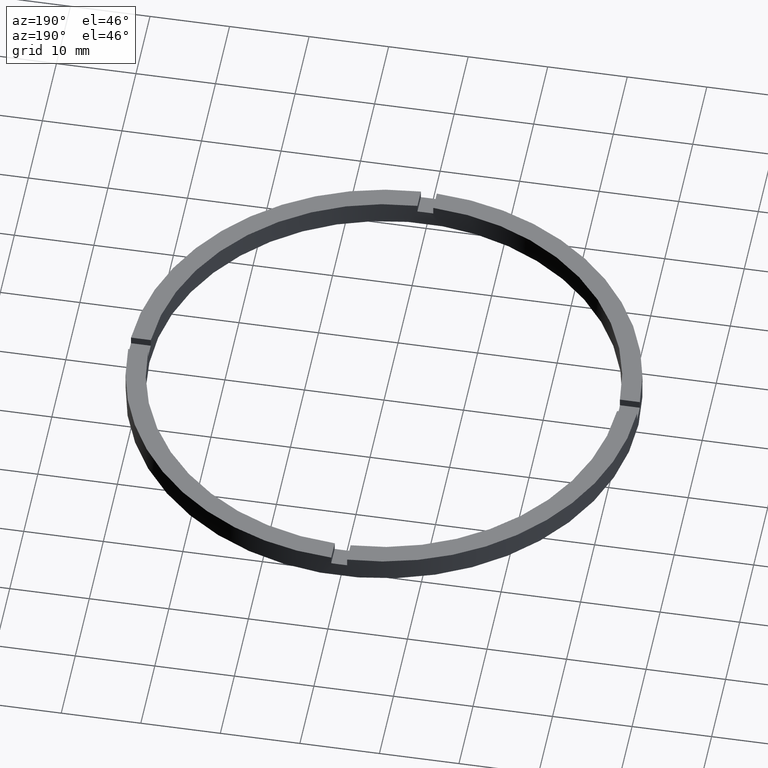
[diagram: clean part render]
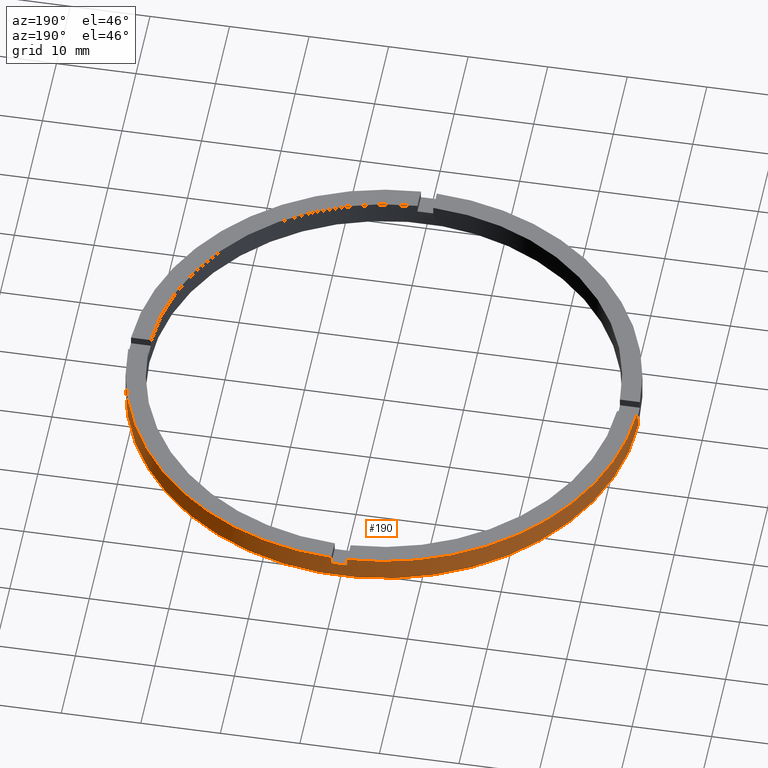
[diagram: same view with one face highlighted and labeled with its STEP entity id]
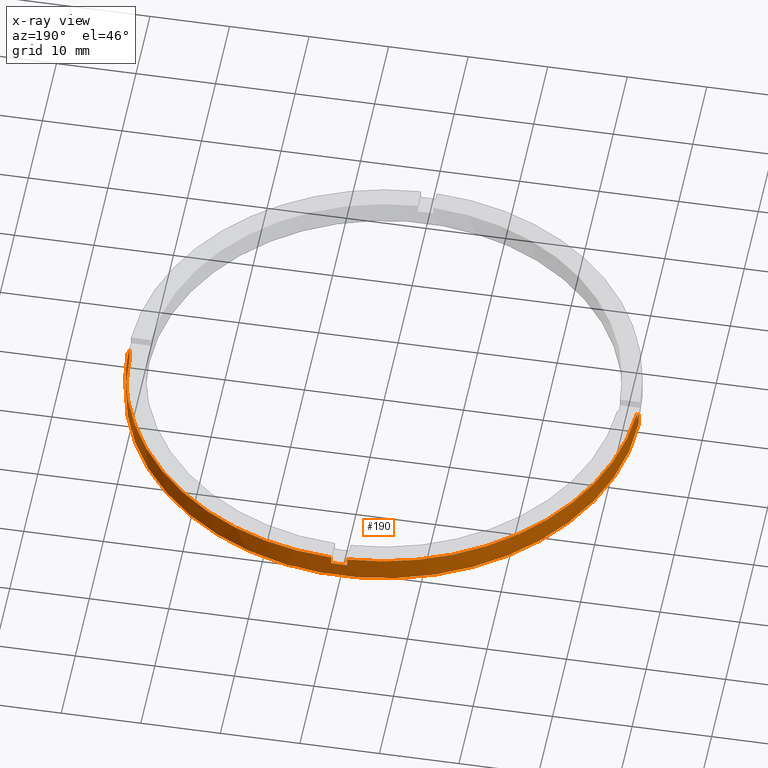
[diagram: x-ray of the same camera — body ghosted, the highlighted face saturated]
A machine part, auxiliary view. The second image highlights one B-rep face of the part: STEP entity #190.
The next image is the same camera in x-ray: the body ghosted, the highlighted face saturated — about 0% of this face is hidden behind the body in this view.
In plain terms, the highlighted cylindrical surface (partial cylindrical patch) has radius 32 mm, axis along (-0, -0, -1).
Its self-contained STEP definition (entity closure, byte-faithful):
#4 = VERTEX_POINT ( 'NONE', #572 ) ;
#17 = LINE ( 'NONE', #426, #536 ) ;
#28 = EDGE_CURVE ( 'NONE', #492, #4, #402, .T. ) ;
#41 = DIRECTION ( 'NONE',  ( 0.000000000000000000, 0.000000000000000000, 1.000000000000000000 ) ) ;
#49 = DIRECTION ( 'NONE',  ( 0.000000000000000000, 0.000000000000000000, 1.000000000000000000 ) ) ;
#53 = LINE ( 'NONE', #724, #577 ) ;
#65 = CARTESIAN_POINT ( 'NONE',  ( 0.000000000000000000, 0.000000000000000000, 2.000000000000000000 ) ) ;
#67 = AXIS2_PLACEMENT_3D ( 'NONE', #586, #49, #130 ) ;
#80 = DIRECTION ( 'NONE',  ( 0.000000000000000000, 0.000000000000000000, 1.000000000000000000 ) ) ;
#85 = CARTESIAN_POINT ( 'NONE',  ( 31.98437118343895591, 0.9999999999998414602, 2.000000000000000000 ) ) ;
#92 = DIRECTION ( 'NONE',  ( 0.000000000000000000, -0.000000000000000000, 1.000000000000000000 ) ) ;
#93 = DIRECTION ( 'NONE',  ( 0.000000000000000000, 0.000000000000000000, 1.000000000000000000 ) ) ;
#104 = DIRECTION ( 'NONE',  ( 0.000000000000000000, 0.000000000000000000, 1.000000000000000000 ) ) ;
#118 = DIRECTION ( 'NONE',  ( 1.000000000000000000, 0.000000000000000000, 0.000000000000000000 ) ) ;
#130 = DIRECTION ( 'NONE',  ( 1.000000000000000000, 0.000000000000000000, 0.000000000000000000 ) ) ;
#131 = EDGE_CURVE ( 'NONE', #302, #700, #627, .T. ) ;
#144 = DIRECTION ( 'NONE',  ( 1.000000000000000000, 0.000000000000000000, 0.000000000000000000 ) ) ;
#167 = CYLINDRICAL_SURFACE ( 'NONE', #434, 32.00000000000000000 ) ;
#168 = VERTEX_POINT ( 'NONE', #85 ) ;
#171 = AXIS2_PLACEMENT_3D ( 'NONE', #223, #349, #144 ) ;
#172 = EDGE_CURVE ( 'NONE', #408, #686, #625, .T. ) ;
#174 = DIRECTION ( 'NONE',  ( -0.000000000000000000, -0.000000000000000000, -1.000000000000000000 ) ) ;
#179 = DIRECTION ( 'NONE',  ( 0.000000000000000000, 0.000000000000000000, 1.000000000000000000 ) ) ;
#188 = AXIS2_PLACEMENT_3D ( 'NONE', #654, #179, #267 ) ;
#190 = ADVANCED_FACE ( 'NONE', ( #361 ), #167, .T. ) ;
#195 = EDGE_LOOP ( 'NONE', ( #428, #486, #464, #219, #499, #721, #444, #772, #396, #234, #389, #681 ) ) ;
#203 = DIRECTION ( 'NONE',  ( -0.000000000000000000, -0.000000000000000000, -1.000000000000000000 ) ) ;
#215 = CARTESIAN_POINT ( 'NONE',  ( 0.9999999999999754641, 31.98437118343894880, 2.000000000000000000 ) ) ;
#219 = ORIENTED_EDGE ( 'NONE', *, *, #616, .F. ) ;
#223 = CARTESIAN_POINT ( 'NONE',  ( 0.000000000000000000, 0.000000000000000000, 0.000000000000000000 ) ) ;
#224 = VERTEX_POINT ( 'NONE', #225 ) ;
#225 = CARTESIAN_POINT ( 'NONE',  ( -1.000000000000024425, 31.98437118343894880, 2.000000000000000000 ) ) ;
#229 = CARTESIAN_POINT ( 'NONE',  ( 32.00000000000000000, 3.918869757271530263E-15, 3.000000000000000000 ) ) ;
#234 = ORIENTED_EDGE ( 'NONE', *, *, #555, .T. ) ;
#262 = DIRECTION ( 'NONE',  ( -1.000000000000000000, 0.000000000000000000, 0.000000000000000000 ) ) ;
#265 = VECTOR ( 'NONE', #685, 1000.000000000000000 ) ;
#266 = VECTOR ( 'NONE', #636, 1000.000000000000000 ) ;
#267 = DIRECTION ( 'NONE',  ( 1.000000000000000000, 0.000000000000000000, 0.000000000000000000 ) ) ;
#271 = LINE ( 'NONE', #378, #529 ) ;
#280 = VERTEX_POINT ( 'NONE', #642 ) ;
#285 = CIRCLE ( 'NONE', #744, 32.00000000000000000 ) ;
#291 = VECTOR ( 'NONE', #706, 1000.000000000000000 ) ;
#292 = LINE ( 'NONE', #368, #265 ) ;
#302 = VERTEX_POINT ( 'NONE', #716 ) ;
#320 = CARTESIAN_POINT ( 'NONE',  ( -32.00000000000000000, 0.000000000000000000, 3.000000000000000000 ) ) ;
#336 = EDGE_CURVE ( 'NONE', #492, #700, #53, .T. ) ;
#342 = CARTESIAN_POINT ( 'NONE',  ( -31.98437118343894880, 0.9999999999999742428, 3.000000000000000000 ) ) ;
#343 = AXIS2_PLACEMENT_3D ( 'NONE', #65, #104, #118 ) ;
#349 = DIRECTION ( 'NONE',  ( 0.000000000000000000, 0.000000000000000000, 1.000000000000000000 ) ) ;
#361 = FACE_OUTER_BOUND ( 'NONE', #195, .T. ) ;
#368 = CARTESIAN_POINT ( 'NONE',  ( 31.98437118343895591, 0.9999999999998414602, 3.000000000000000000 ) ) ;
#378 = CARTESIAN_POINT ( 'NONE',  ( 0.9999999999999754641, 31.98437118343894880, 3.000000000000000000 ) ) ;
#389 = ORIENTED_EDGE ( 'NONE', *, *, #172, .F. ) ;
#392 = VERTEX_POINT ( 'NONE', #447 ) ;
#396 = ORIENTED_EDGE ( 'NONE', *, *, #761, .F. ) ;
#401 = EDGE_CURVE ( 'NONE', #280, #392, #545, .T. ) ;
#402 = CIRCLE ( 'NONE', #67, 32.00000000000000000 ) ;
#408 = VERTEX_POINT ( 'NONE', #532 ) ;
#423 = VERTEX_POINT ( 'NONE', #770 ) ;
#426 = CARTESIAN_POINT ( 'NONE',  ( -1.000000000000024425, 31.98437118343894880, 3.000000000000000000 ) ) ;
#428 = ORIENTED_EDGE ( 'NONE', *, *, #645, .F. ) ;
#434 = AXIS2_PLACEMENT_3D ( 'NONE', #461, #174, #262 ) ;
#444 = ORIENTED_EDGE ( 'NONE', *, *, #131, .F. ) ;
#447 = CARTESIAN_POINT ( 'NONE',  ( 32.00000000000000000, 3.918869757271530263E-15, 0.000000000000000000 ) ) ;
#461 = CARTESIAN_POINT ( 'NONE',  ( 0.000000000000000000, 0.000000000000000000, 3.000000000000000000 ) ) ;
#464 = ORIENTED_EDGE ( 'NONE', *, *, #607, .T. ) ;
#486 = ORIENTED_EDGE ( 'NONE', *, *, #401, .T. ) ;
#492 = VERTEX_POINT ( 'NONE', #598 ) ;
#493 = CARTESIAN_POINT ( 'NONE',  ( 0.000000000000000000, 0.000000000000000000, 3.000000000000000000 ) ) ;
#499 = ORIENTED_EDGE ( 'NONE', *, *, #28, .F. ) ;
#514 = EDGE_CURVE ( 'NONE', #408, #168, #292, .T. ) ;
#524 = CIRCLE ( 'NONE', #343, 32.00000000000000000 ) ;
#526 = VERTEX_POINT ( 'NONE', #215 ) ;
#529 = VECTOR ( 'NONE', #93, 1000.000000000000000 ) ;
#530 = LINE ( 'NONE', #320, #266 ) ;
#532 = CARTESIAN_POINT ( 'NONE',  ( 31.98437118343895591, 0.9999999999998414602, 3.000000000000000000 ) ) ;
#536 = VECTOR ( 'NONE', #203, 1000.000000000000000 ) ;
#545 = LINE ( 'NONE', #229, #291 ) ;
#550 = CIRCLE ( 'NONE', #171, 32.00000000000000000 ) ;
#555 = EDGE_CURVE ( 'NONE', #526, #686, #271, .T. ) ;
#572 = CARTESIAN_POINT ( 'NONE',  ( -32.00000000000000000, 0.000000000000000000, 2.000000000000000000 ) ) ;
#575 = AXIS2_PLACEMENT_3D ( 'NONE', #493, #80, #719 ) ;
#577 = VECTOR ( 'NONE', #41, 1000.000000000000000 ) ;
#586 = CARTESIAN_POINT ( 'NONE',  ( 0.000000000000000000, 0.000000000000000000, 2.000000000000000000 ) ) ;
#598 = CARTESIAN_POINT ( 'NONE',  ( -31.98437118343894880, 0.9999999999999742428, 2.000000000000000000 ) ) ;
#607 = EDGE_CURVE ( 'NONE', #392, #423, #550, .T. ) ;
#616 = EDGE_CURVE ( 'NONE', #4, #423, #530, .T. ) ;
#625 = CIRCLE ( 'NONE', #188, 32.00000000000000000 ) ;
#627 = CIRCLE ( 'NONE', #575, 32.00000000000000000 ) ;
#636 = DIRECTION ( 'NONE',  ( -0.000000000000000000, -0.000000000000000000, -1.000000000000000000 ) ) ;
#642 = CARTESIAN_POINT ( 'NONE',  ( 32.00000000000000000, 3.918869757271530263E-15, 2.000000000000000000 ) ) ;
#645 = EDGE_CURVE ( 'NONE', #280, #168, #524, .T. ) ;
#652 = EDGE_CURVE ( 'NONE', #302, #224, #17, .T. ) ;
#654 = CARTESIAN_POINT ( 'NONE',  ( 0.000000000000000000, 0.000000000000000000, 3.000000000000000000 ) ) ;
#678 = CARTESIAN_POINT ( 'NONE',  ( 0.9999999999999754641, 31.98437118343894880, 3.000000000000000000 ) ) ;
#681 = ORIENTED_EDGE ( 'NONE', *, *, #514, .T. ) ;
#685 = DIRECTION ( 'NONE',  ( -0.000000000000000000, -0.000000000000000000, -1.000000000000000000 ) ) ;
#686 = VERTEX_POINT ( 'NONE', #678 ) ;
#700 = VERTEX_POINT ( 'NONE', #342 ) ;
#706 = DIRECTION ( 'NONE',  ( -0.000000000000000000, -0.000000000000000000, -1.000000000000000000 ) ) ;
#716 = CARTESIAN_POINT ( 'NONE',  ( -1.000000000000024425, 31.98437118343894880, 3.000000000000000000 ) ) ;
#719 = DIRECTION ( 'NONE',  ( 1.000000000000000000, 0.000000000000000000, 0.000000000000000000 ) ) ;
#721 = ORIENTED_EDGE ( 'NONE', *, *, #336, .T. ) ;
#724 = CARTESIAN_POINT ( 'NONE',  ( -31.98437118343894880, 0.9999999999999742428, 3.000000000000000000 ) ) ;
#740 = DIRECTION ( 'NONE',  ( 1.000000000000000000, 0.000000000000000000, 0.000000000000000000 ) ) ;
#744 = AXIS2_PLACEMENT_3D ( 'NONE', #756, #92, #740 ) ;
#756 = CARTESIAN_POINT ( 'NONE',  ( 0.000000000000000000, 0.000000000000000000, 2.000000000000000000 ) ) ;
#761 = EDGE_CURVE ( 'NONE', #526, #224, #285, .T. ) ;
#770 = CARTESIAN_POINT ( 'NONE',  ( -32.00000000000000000, 0.000000000000000000, 0.000000000000000000 ) ) ;
#772 = ORIENTED_EDGE ( 'NONE', *, *, #652, .T. ) ;